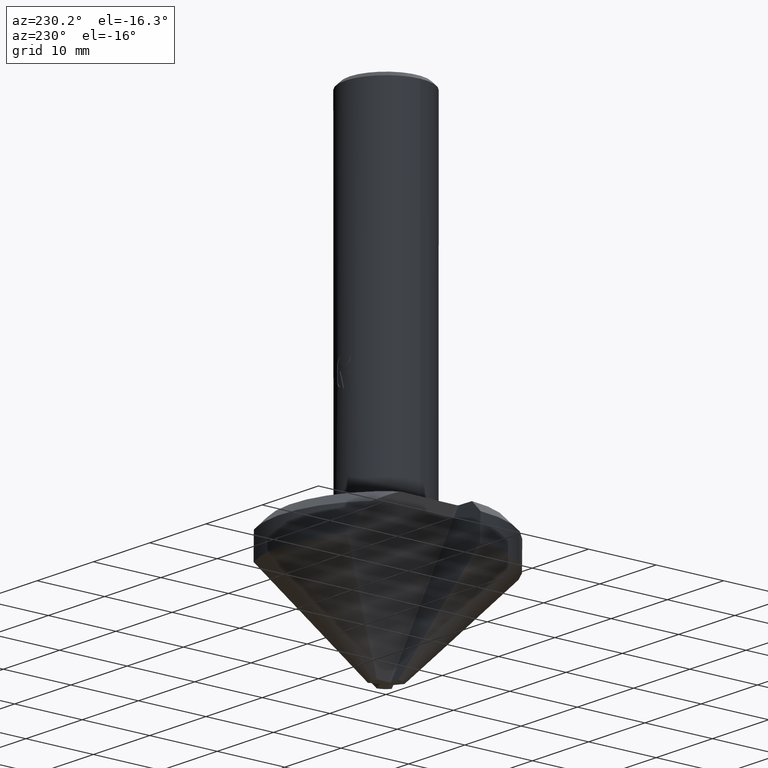
[diagram: clean part render]
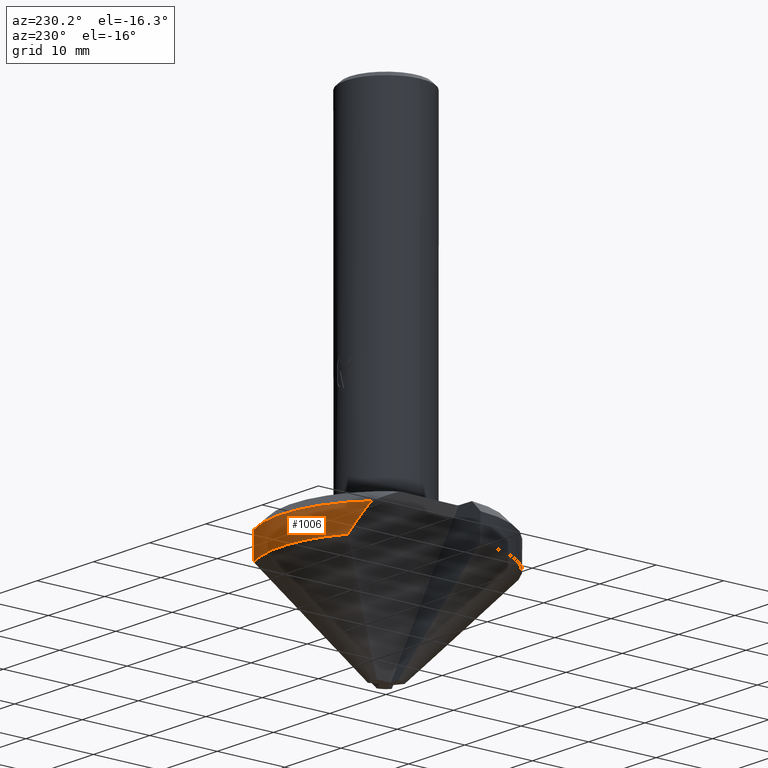
[diagram: same view with one face highlighted and labeled with its STEP entity id]
A machine part, auxiliary view. The second image highlights one B-rep face of the part: STEP entity #1006.
In plain terms, the highlighted cylindrical surface (partial cylindrical patch) has radius 15.5 mm, axis along (-0, -0, 1).
Its self-contained STEP definition (entity closure, byte-faithful):
#420=VERTEX_POINT('',#1178);
#452=VERTEX_POINT('',#1212);
#514=VERTEX_POINT('',#1281);
#794=EDGE_CURVE('',#1008,#514,#1588,.T.);
#984=EDGE_CURVE('',#420,#452,#1793,.T.);
#1006=ADVANCED_FACE('',(#1816),#1817,.T.);
#1008=VERTEX_POINT('',#1819);
#1062=EDGE_CURVE('',#420,#1008,#1877,.T.);
#1088=EDGE_CURVE('',#514,#452,#1903,.T.);
#1178=CARTESIAN_POINT('',(-8.62602678301135,12.8779525522798,-57.6));
#1212=CARTESIAN_POINT('',(6.86001409771061,13.8992879882105,-57.6));
#1281=CARTESIAN_POINT('',(6.74038306805139,13.957694512201,-53.79));
#1588=CIRCLE('',#2875,15.5);
#1793=CIRCLE('',#3392,15.5);
#1816=FACE_OUTER_BOUND('',#3449,.T.);
#1817=CYLINDRICAL_SURFACE('',#3450,15.5);
#1819=CARTESIAN_POINT('',(-10.7983233416146,11.1196318738501,-53.79));
#1877=ELLIPSE('',#3613,31.0190093490264,15.5);
#1903=ELLIPSE('',#3713,444.132479391492,15.5);
#2875=AXIS2_PLACEMENT_3D('',#4302,#4303,#4304);
#3392=AXIS2_PLACEMENT_3D('',#4506,#4507,#4508);
#3449=EDGE_LOOP('',(#4536,#4537,#4538,#4539));
#3450=AXIS2_PLACEMENT_3D('',#4540,#4541,#4542);
#3613=AXIS2_PLACEMENT_3D('',#4600,#4601,#4602);
#3713=AXIS2_PLACEMENT_3D('',#4614,#4615,#4616);
#4302=CARTESIAN_POINT('',(0.0,0.0,-53.79));
#4303=DIRECTION('',(0.0,0.0,-1.0));
#4304=DIRECTION('',(-1.0,0.0,0.0));
#4506=CARTESIAN_POINT('',(0.0,0.0,-57.6));
#4507=DIRECTION('',(0.0,0.0,-1.0));
#4508=DIRECTION('',(-1.0,0.0,0.0));
#4536=ORIENTED_EDGE('',*,*,#1062,.T.);
#4537=ORIENTED_EDGE('',*,*,#794,.T.);
#4538=ORIENTED_EDGE('',*,*,#1088,.T.);
#4539=ORIENTED_EDGE('',*,*,#984,.F.);
#4540=CARTESIAN_POINT('',(0.0,0.0,-55.695));
#4541=DIRECTION('',(-0.0,-0.0,1.0));
#4542=DIRECTION('',(-1.0,0.0,0.0));
#4600=CARTESIAN_POINT('',(0.0,0.0,-72.2231790349524));
#4601=DIRECTION('',(0.866108656975694,0.012732436165577,0.499693585491199));
#4602=DIRECTION('',(-0.499639599429125,-0.00734507068401734,0.866202240021896));
#4614=CARTESIAN_POINT('',(0.0,0.0,-71.0100000000001));
#4615=DIRECTION('',(-0.882409725041803,0.469185573394539,-0.0348994967025078));
#4616=DIRECTION('',(-0.0308144266054673,0.0163843212573674,0.999390827019095));